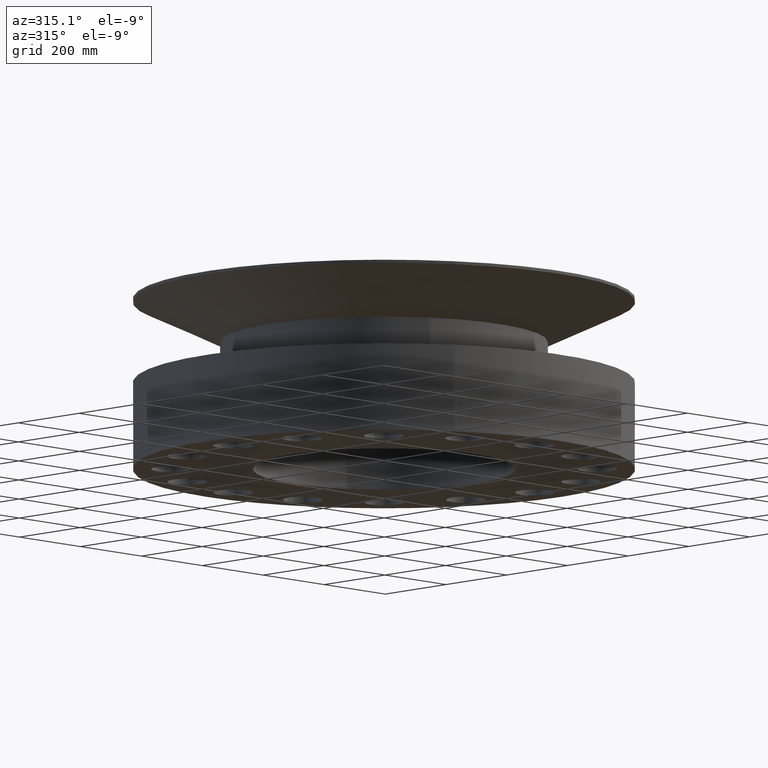
[diagram: clean part render]
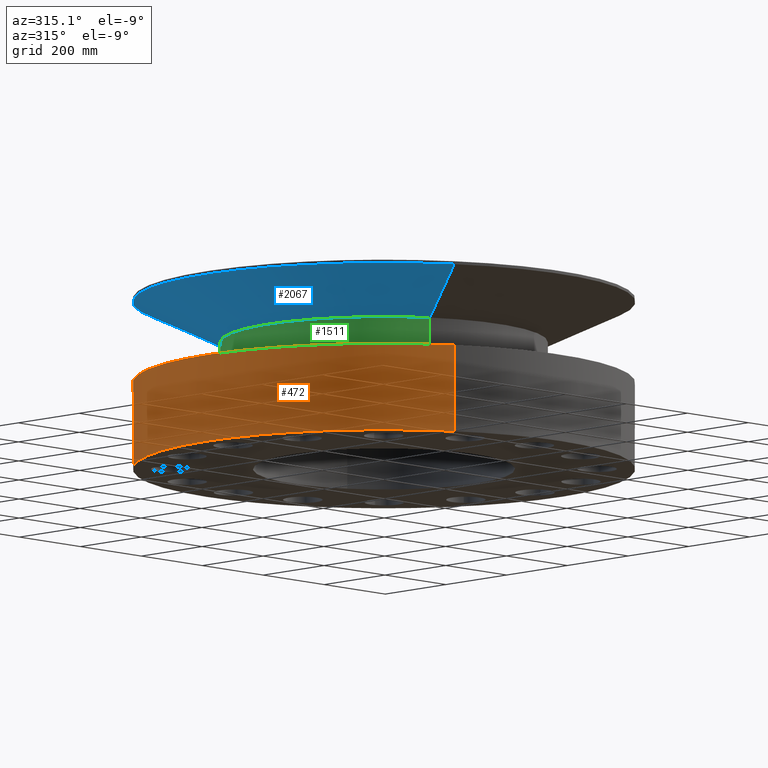
[diagram: same view with three faces highlighted in distinct colors, each labeled with its STEP entity id]
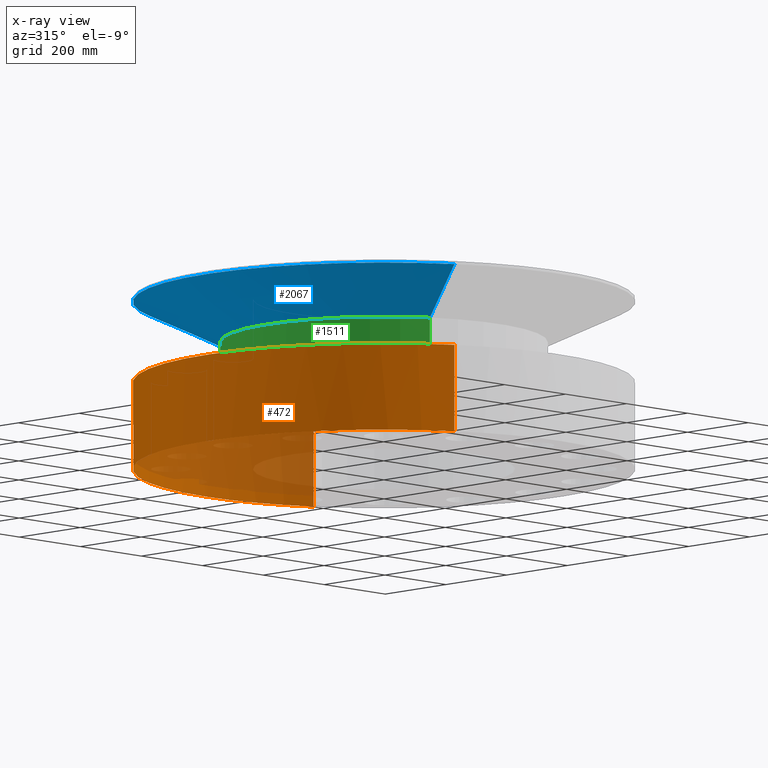
[diagram: x-ray of the same camera — body ghosted, the three highlighted faces saturated]
A machine part, auxiliary view with three faces highlighted in distinct colors.
The next image is the same camera in x-ray (body ghosted, the three faces saturated) — at least one of them is partly hidden behind the body in this view.
Their STEP definitions:

[orange] entity #472 — the highlighted cylindrical surface (partial cylindrical patch) has radius 584.2 mm, axis along (0, 0, -1).
#91=AXIS2_PLACEMENT_3D('Circle Axis2P3D',#89,#90,$) ;
#429=AXIS2_PLACEMENT_3D('Cylinder Axis2P3D',#426,#427,#428) ;
#433=AXIS2_PLACEMENT_3D('Circle Axis2P3D',#431,#432,$) ;
#442=AXIS2_PLACEMENT_3D('Circle Axis2P3D',#440,#441,$) ;
#449=AXIS2_PLACEMENT_3D('Circle Axis2P3D',#447,#448,$) ;
#84=CARTESIAN_POINT('Vertex',(11.0267873879,20.1843989236,8.00000000003)) ;
#86=CARTESIAN_POINT('Vertex',(-11.0267873879,-20.1843989236,8.00000000003)) ;
#89=CARTESIAN_POINT('Axis2P3D Location',(0.,0.,8.00000000003)) ;
#426=CARTESIAN_POINT('Axis2P3D Location',(0.,0.,7.75000000003)) ;
#431=CARTESIAN_POINT('Axis2P3D Location',(0.,0.,3.35689481461E-015)) ;
#435=CARTESIAN_POINT('Vertex',(-8.80570800757E-015,23.0000000001,0.)) ;
#437=CARTESIAN_POINT('Vertex',(11.0267873879,20.1843989236,3.35689481461E-015)) ;
#440=CARTESIAN_POINT('Axis2P3D Location',(0.,0.,3.35689481461E-015)) ;
#444=CARTESIAN_POINT('Vertex',(-23.0000000001,-2.81668763805E-015,0.)) ;
#447=CARTESIAN_POINT('Axis2P3D Location',(0.,0.,3.35689481461E-015)) ;
#451=CARTESIAN_POINT('Vertex',(-11.0267873879,-20.1843989236,3.35689481461E-015)) ;
#454=CARTESIAN_POINT('Line Origine',(-11.0267873879,-20.1843989236,15.6152306327)) ;
#459=CARTESIAN_POINT('Line Origine',(11.0267873879,20.1843989236,15.6152306327)) ;
#90=DIRECTION('Axis2P3D Direction',(0.,0.,-0.0393700787402)) ;
#427=DIRECTION('Axis2P3D Direction',(0.,0.,-0.0393700787402)) ;
#428=DIRECTION('Axis2P3D XDirection',(-0.0188750212049,-0.0345504945626,0.)) ;
#432=DIRECTION('Axis2P3D Direction',(0.,0.,-0.0393700787402)) ;
#441=DIRECTION('Axis2P3D Direction',(0.,0.,-0.0393700787402)) ;
#448=DIRECTION('Axis2P3D Direction',(0.,0.,-0.0393700787402)) ;
#455=DIRECTION('Vector Direction',(0.,0.,-0.0393700787402)) ;
#460=DIRECTION('Vector Direction',(0.,0.,-0.0393700787402)) ;
#456=VECTOR('Line Direction',#455,0.0393700787402) ;
#461=VECTOR('Line Direction',#460,0.0393700787402) ;
#465=ORIENTED_EDGE('',*,*,#439,.F.) ;
#466=ORIENTED_EDGE('',*,*,#446,.F.) ;
#467=ORIENTED_EDGE('',*,*,#453,.F.) ;
#468=ORIENTED_EDGE('',*,*,#458,.T.) ;
#469=ORIENTED_EDGE('',*,*,#93,.T.) ;
#470=ORIENTED_EDGE('',*,*,#463,.F.) ;
#472=ADVANCED_FACE('PartBody',(#471),#430,.T.) ;
#92=CIRCLE('generated circle',#91,23.0000000001) ;
#434=CIRCLE('generated circle',#433,23.0000000001) ;
#443=CIRCLE('generated circle',#442,23.0000000001) ;
#450=CIRCLE('generated circle',#449,23.0000000001) ;
#430=CYLINDRICAL_SURFACE('generated cylinder',#429,23.0000000001) ;
#93=EDGE_CURVE('',#87,#85,#92,.T.) ;
#439=EDGE_CURVE('',#436,#438,#434,.T.) ;
#446=EDGE_CURVE('',#445,#436,#443,.T.) ;
#453=EDGE_CURVE('',#452,#445,#450,.T.) ;
#458=EDGE_CURVE('',#452,#87,#457,.F.) ;
#463=EDGE_CURVE('',#438,#85,#462,.F.) ;
#464=EDGE_LOOP('',(#465,#466,#467,#468,#469,#470)) ;
#471=FACE_OUTER_BOUND('',#464,.T.) ;
#457=LINE('Line',#454,#456) ;
#462=LINE('Line',#459,#461) ;
#85=VERTEX_POINT('',#84) ;
#87=VERTEX_POINT('',#86) ;
#436=VERTEX_POINT('',#435) ;
#438=VERTEX_POINT('',#437) ;
#445=VERTEX_POINT('',#444) ;
#452=VERTEX_POINT('',#451) ;

[blue] entity #2067 — the highlighted conical surface has half-angle 65 deg.
#1502=AXIS2_PLACEMENT_3D('Circle Axis2P3D',#1500,#1501,$) ;
#2028=AXIS2_PLACEMENT_3D('Cone Axis2P3D',#2025,#2026,#2027) ;
#2058=AXIS2_PLACEMENT_3D('Circle Axis2P3D',#2056,#2057,$) ;
#1478=CARTESIAN_POINT('Vertex',(7.19138307909,13.1637384284,11.75)) ;
#1485=CARTESIAN_POINT('Vertex',(-7.19138307909,-13.1637384284,11.75)) ;
#1500=CARTESIAN_POINT('Axis2P3D Location',(0.,0.,11.75)) ;
#2025=CARTESIAN_POINT('Axis2P3D Location',(0.,0.,11.75)) ;
#2030=CARTESIAN_POINT('Line Origine',(9.10908523352,16.674068676,13.6152306327)) ;
#2034=CARTESIAN_POINT('Vertex',(11.0267873879,20.1843989236,15.4804612653)) ;
#2041=CARTESIAN_POINT('Vertex',(-11.0267873879,-20.1843989236,15.4804612653)) ;
#2044=CARTESIAN_POINT('Line Origine',(-9.10908523352,-16.674068676,13.6152306327)) ;
#2056=CARTESIAN_POINT('Axis2P3D Location',(0.,0.,15.4804612653)) ;
#1501=DIRECTION('Axis2P3D Direction',(0.,0.,-0.0393700787402)) ;
#2026=DIRECTION('Axis2P3D Direction',(-0.,-0.,0.0393700787402)) ;
#2027=DIRECTION('Axis2P3D XDirection',(0.0188750212049,0.0345504945626,0.)) ;
#2031=DIRECTION('Vector Direction',(0.0171065786985,0.0313133822681,0.0166385142418)) ;
#2045=DIRECTION('Vector Direction',(-0.0171065786985,-0.0313133822681,0.0166385142418)) ;
#2057=DIRECTION('Axis2P3D Direction',(-0.,0.,0.0393700787402)) ;
#2032=VECTOR('Line Direction',#2031,0.0393700787402) ;
#2046=VECTOR('Line Direction',#2045,0.0393700787402) ;
#2062=ORIENTED_EDGE('',*,*,#1504,.F.) ;
#2063=ORIENTED_EDGE('',*,*,#2048,.T.) ;
#2064=ORIENTED_EDGE('',*,*,#2060,.T.) ;
#2065=ORIENTED_EDGE('',*,*,#2036,.F.) ;
#2067=ADVANCED_FACE('PartBody',(#2066),#2029,.T.) ;
#1503=CIRCLE('generated circle',#1502,15.0000000001) ;
#2059=CIRCLE('generated circle',#2058,23.0000000001) ;
#2029=CONICAL_SURFACE('Cone',#2028,15.0000000001,1.1344640138) ;
#1504=EDGE_CURVE('',#1486,#1479,#1503,.T.) ;
#2036=EDGE_CURVE('',#1479,#2035,#2033,.T.) ;
#2048=EDGE_CURVE('',#1486,#2042,#2047,.T.) ;
#2060=EDGE_CURVE('',#2042,#2035,#2059,.F.) ;
#2061=EDGE_LOOP('',(#2062,#2063,#2064,#2065)) ;
#2066=FACE_OUTER_BOUND('',#2061,.T.) ;
#2033=LINE('Line',#2030,#2032) ;
#2047=LINE('Line',#2044,#2046) ;
#1479=VERTEX_POINT('',#1478) ;
#1486=VERTEX_POINT('',#1485) ;
#2035=VERTEX_POINT('',#2034) ;
#2042=VERTEX_POINT('',#2041) ;

[green] entity #1511 — the highlighted cylindrical surface (partial cylindrical patch) has radius 381 mm, axis along (0, 0, -1).
#1280=AXIS2_PLACEMENT_3D('Circle Axis2P3D',#1278,#1279,$) ;
#1472=AXIS2_PLACEMENT_3D('Cylinder Axis2P3D',#1469,#1470,#1471) ;
#1502=AXIS2_PLACEMENT_3D('Circle Axis2P3D',#1500,#1501,$) ;
#1256=CARTESIAN_POINT('Vertex',(7.19138307909,13.1637384284,8.04098076215)) ;
#1263=CARTESIAN_POINT('Vertex',(-7.19138307909,-13.1637384284,8.04098076215)) ;
#1278=CARTESIAN_POINT('Axis2P3D Location',(0.,0.,8.04098076215)) ;
#1469=CARTESIAN_POINT('Axis2P3D Location',(0.,0.,7.75000000003)) ;
#1474=CARTESIAN_POINT('Line Origine',(7.19138307909,13.1637384284,9.8954903811)) ;
#1478=CARTESIAN_POINT('Vertex',(7.19138307909,13.1637384284,11.75)) ;
#1485=CARTESIAN_POINT('Vertex',(-7.19138307909,-13.1637384284,11.75)) ;
#1488=CARTESIAN_POINT('Line Origine',(-7.19138307909,-13.1637384284,9.8954903811)) ;
#1500=CARTESIAN_POINT('Axis2P3D Location',(0.,0.,11.75)) ;
#1279=DIRECTION('Axis2P3D Direction',(-0.,0.,0.0393700787402)) ;
#1470=DIRECTION('Axis2P3D Direction',(0.,0.,-0.0393700787402)) ;
#1471=DIRECTION('Axis2P3D XDirection',(-0.0188750212049,-0.0345504945626,0.)) ;
#1475=DIRECTION('Vector Direction',(0.,0.,-0.0393700787402)) ;
#1489=DIRECTION('Vector Direction',(0.,0.,-0.0393700787402)) ;
#1501=DIRECTION('Axis2P3D Direction',(0.,0.,-0.0393700787402)) ;
#1476=VECTOR('Line Direction',#1475,0.0393700787402) ;
#1490=VECTOR('Line Direction',#1489,0.0393700787402) ;
#1506=ORIENTED_EDGE('',*,*,#1282,.F.) ;
#1507=ORIENTED_EDGE('',*,*,#1492,.T.) ;
#1508=ORIENTED_EDGE('',*,*,#1504,.T.) ;
#1509=ORIENTED_EDGE('',*,*,#1480,.F.) ;
#1511=ADVANCED_FACE('PartBody',(#1510),#1473,.T.) ;
#1281=CIRCLE('generated circle',#1280,15.0000000001) ;
#1503=CIRCLE('generated circle',#1502,15.0000000001) ;
#1473=CYLINDRICAL_SURFACE('generated cylinder',#1472,15.0000000001) ;
#1282=EDGE_CURVE('',#1264,#1257,#1281,.F.) ;
#1480=EDGE_CURVE('',#1257,#1479,#1477,.F.) ;
#1492=EDGE_CURVE('',#1264,#1486,#1491,.F.) ;
#1504=EDGE_CURVE('',#1486,#1479,#1503,.T.) ;
#1505=EDGE_LOOP('',(#1506,#1507,#1508,#1509)) ;
#1510=FACE_OUTER_BOUND('',#1505,.T.) ;
#1477=LINE('Line',#1474,#1476) ;
#1491=LINE('Line',#1488,#1490) ;
#1257=VERTEX_POINT('',#1256) ;
#1264=VERTEX_POINT('',#1263) ;
#1479=VERTEX_POINT('',#1478) ;
#1486=VERTEX_POINT('',#1485) ;